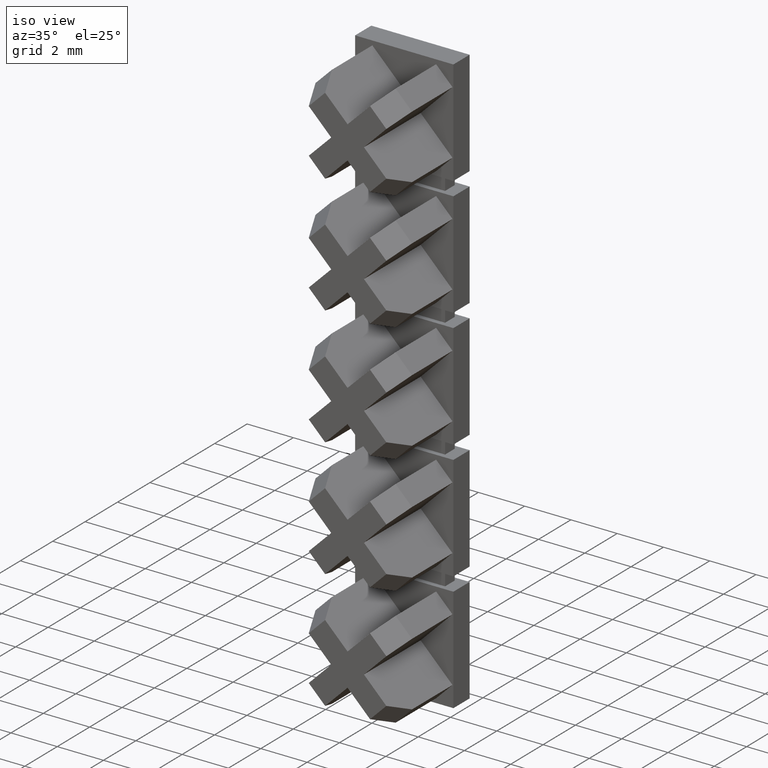
[diagram: clean part render]
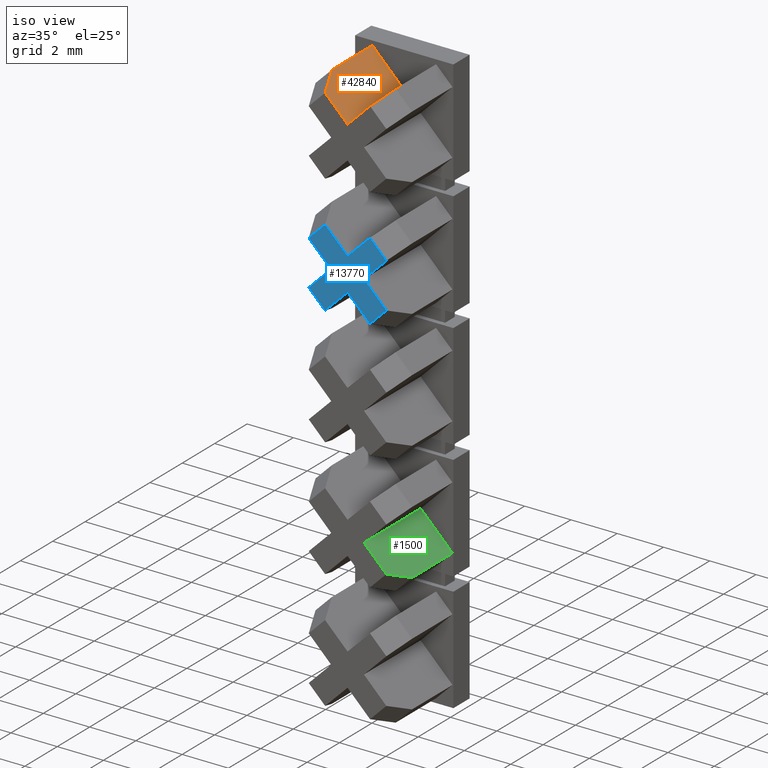
[diagram: same view with three faces highlighted in distinct colors, each labeled with its STEP entity id]
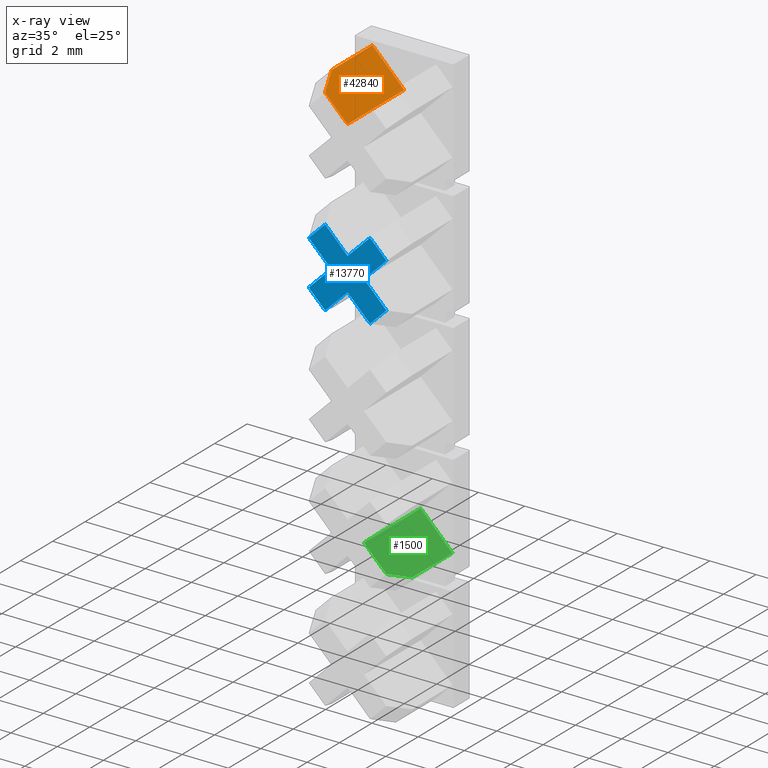
[diagram: x-ray of the same camera — body ghosted, the three highlighted faces saturated]
A machine part, iso view with three faces highlighted in distinct colors.
The next image is the same camera in x-ray (body ghosted, the three faces saturated) — at least one of them is partly hidden behind the body in this view.
Their STEP definitions:

[orange] entity #42840 — the highlighted planar face has unit normal (0.7071, 0, 0.7071).
#26390=CARTESIAN_POINT('',(14.4571673365369,-9.15000000000323,
72.3771067811865));
#26400=VERTEX_POINT('',#26390);
#26430=CARTESIAN_POINT('',(33.1642741177235,-9.15000000000323,53.67));
#26440=DIRECTION('',(-0.707106781186548,0.,0.707106781186548));
#26450=VECTOR('',#26440,1.);
#26460=LINE('',#26430,#26450);
#26470=CARTESIAN_POINT('',(13.0783091132231,-9.15000000000323,
73.7559650045003));
#26480=VERTEX_POINT('',#26470);
#26490=EDGE_CURVE('',#26400,#26480,#26460,.T.);
#38290=CARTESIAN_POINT('',(14.4571673365373,-12.6500000000046,
72.3771067811865));
#38300=VERTEX_POINT('',#38290);
#38330=CARTESIAN_POINT('',(14.4571673365372,-11.4157999825918,
72.3771067811865));
#38340=DIRECTION('',(-1.15463194561016E-13,1.,0.));
#38350=VECTOR('',#38340,1.);
#38360=LINE('',#38330,#38350);
#38370=EDGE_CURVE('',#38300,#26400,#38360,.T.);
#41750=CARTESIAN_POINT('',(13.4865574036874,-12.6500000000047,
73.3477167140364));
#41760=VERTEX_POINT('',#41750);
#41790=CARTESIAN_POINT('',(22.8642741177239,-12.6500000000036,63.97));
#41800=DIRECTION('',(-0.707106781186548,-8.16569034611803E-14,
0.707106781186548));
#41810=VECTOR('',#41800,1.);
#41820=LINE('',#41790,#41810);
#41830=EDGE_CURVE('',#38300,#41760,#41820,.T.);
#42380=CARTESIAN_POINT('',(13.0783091132234,-11.6500000000047,
73.7559650045003));
#42390=VERTEX_POINT('',#42380);
#42440=CARTESIAN_POINT('',(12.9826973564879,-11.4157999825918,
73.8515767612357));
#42450=DIRECTION('',(-0.353553390593373,0.866025403784398,
0.353553390593274));
#42460=VECTOR('',#42450,1.);
#42470=LINE('',#42440,#42460);
#42480=EDGE_CURVE('',#41760,#42390,#42470,.T.);
#42670=CARTESIAN_POINT('',(13.0606314436935,-9.15000000000473,
73.77364267403));
#42680=DIRECTION('',(0.707106781186548,8.16448078515563E-14,
0.707106781186548));
#42690=DIRECTION('',(-0.707106781186548,-8.16448078515563E-14,
0.707106781186548));
#42700=AXIS2_PLACEMENT_3D('',#42670,#42680,#42690);
#42710=PLANE('',#42700);
#42720=ORIENTED_EDGE('',*,*,#26490,.T.);
#42730=ORIENTED_EDGE('',*,*,#38370,.T.);
#42740=ORIENTED_EDGE('',*,*,#41830,.F.);
#42750=ORIENTED_EDGE('',*,*,#42480,.F.);
#42760=CARTESIAN_POINT('',(13.0783091132234,-11.4157999825918,
73.7559650045003));
#42770=DIRECTION('',(-1.15463194561016E-13,1.,2.78904447747367E-31));
#42780=VECTOR('',#42770,1.);
#42790=LINE('',#42760,#42780);
#42800=EDGE_CURVE('',#42390,#26480,#42790,.T.);
#42810=ORIENTED_EDGE('',*,*,#42800,.F.);
#42820=EDGE_LOOP('',(#42810,#42750,#42740,#42730,#42720));
#42830=FACE_OUTER_BOUND('',#42820,.T.);
#42840=ADVANCED_FACE('',(#42830),#42710,.T.);

[blue] entity #13770 — the highlighted planar face has unit normal (-0, 1, 0).
#12740=CARTESIAN_POINT('',(11.8898260000004,-12.6500000000049,33.844697)
);
#12750=DIRECTION('',(-1.15463194561016E-13,1.,0.));
#12760=DIRECTION('',(-1.,-1.15463194561016E-13,0.));
#12770=AXIS2_PLACEMENT_3D('',#12740,#12750,#12760);
#12780=PLANE('',#12770);
#12790=CARTESIAN_POINT('',(7.46427411772383,-12.6500000000054,58.82));
#12800=DIRECTION('',(0.707106781186547,8.16569034611803E-14,
0.707106781186548));
#12810=VECTOR('',#12800,1.);
#12820=LINE('',#12790,#12810);
#12830=CARTESIAN_POINT('',(15.1642741177238,-12.6500000000045,66.52));
#12840=VERTEX_POINT('',#12830);
#12850=CARTESIAN_POINT('',(16.1348840505737,-12.6500000000044,
67.4906099328499));
#12860=VERTEX_POINT('',#12850);
#12870=EDGE_CURVE('',#12840,#12860,#12820,.T.);
#12880=ORIENTED_EDGE('',*,*,#12870,.T.);
#12890=CARTESIAN_POINT('',(22.8642741177239,-12.6500000000036,58.82));
#12900=DIRECTION('',(-0.707106781186547,-8.16291478855646E-14,
0.707106781186548));
#12910=VECTOR('',#12900,1.);
#12920=LINE('',#12890,#12910);
#12930=CARTESIAN_POINT('',(16.1348840505738,-12.6500000000044,
65.5493900671501));
#12940=VERTEX_POINT('',#12930);
#12950=EDGE_CURVE('',#12940,#12840,#12920,.T.);
#12960=ORIENTED_EDGE('',*,*,#12950,.T.);
#12970=CARTESIAN_POINT('',(9.40549398342364,-12.6500000000052,58.82));
#12980=DIRECTION('',(0.707106781186547,8.16297660369823E-14,
0.707106781186548));
#12990=VECTOR('',#12980,1.);
#13000=LINE('',#12970,#12990);
#13010=CARTESIAN_POINT('',(15.4277772693872,-12.6500000000045,
64.8422832859635));
#13020=VERTEX_POINT('',#13010);
#13030=EDGE_CURVE('',#13020,#12940,#13000,.T.);
#13040=ORIENTED_EDGE('',*,*,#13030,.T.);
#13050=CARTESIAN_POINT('',(21.4500605553508,-12.6500000000038,58.82));
#13060=DIRECTION('',(0.707106781186547,8.16569034611803E-14,
-0.707106781186548));
#13070=VECTOR('',#13060,1.);
#13080=LINE('',#13050,#13070);
#13090=CARTESIAN_POINT('',(14.4571673365373,-12.6500000000046,
65.8128932188134));
#13100=VERTEX_POINT('',#13090);
#13110=EDGE_CURVE('',#13100,#13020,#13080,.T.);
#13120=ORIENTED_EDGE('',*,*,#13110,.T.);
#13130=CARTESIAN_POINT('',(7.46427411772383,-12.6500000000054,58.82));
#13140=DIRECTION('',(0.707106781186547,8.16569034611803E-14,
0.707106781186548));
#13150=VECTOR('',#13140,1.);
#13160=LINE('',#13130,#13150);
#13170=CARTESIAN_POINT('',(13.4865574036874,-12.6500000000047,
64.8422832859635));
#13180=VERTEX_POINT('',#13170);
#13190=EDGE_CURVE('',#13180,#13100,#13160,.T.);
#13200=ORIENTED_EDGE('',*,*,#13190,.T.);
#13210=CARTESIAN_POINT('',(19.508840689651,-12.650000000004,58.82));
#13220=DIRECTION('',(0.707106781186548,8.16297660369823E-14,
-0.707106781186548));
#13230=VECTOR('',#13220,1.);
#13240=LINE('',#13210,#13230);
#13250=CARTESIAN_POINT('',(12.7794506225008,-12.6500000000048,
65.5493900671501));
#13260=VERTEX_POINT('',#13250);
#13270=EDGE_CURVE('',#13260,#13180,#13240,.T.);
#13280=ORIENTED_EDGE('',*,*,#13270,.T.);
#13290=CARTESIAN_POINT('',(6.05006055535074,-12.6500000000055,58.82));
#13300=DIRECTION('',(-0.707106781186547,-8.16569034611803E-14,
-0.707106781186548));
#13310=VECTOR('',#13300,1.);
#13320=LINE('',#13290,#13310);
#13330=CARTESIAN_POINT('',(13.7500605553508,-12.6500000000047,66.52));
#13340=VERTEX_POINT('',#13330);
#13350=EDGE_CURVE('',#13340,#13260,#13320,.T.);
#13360=ORIENTED_EDGE('',*,*,#13350,.T.);
#13370=CARTESIAN_POINT('',(21.4500605553507,-12.6500000000038,58.82));
#13380=DIRECTION('',(0.707106781186546,8.16291478855646E-14,
-0.707106781186549));
#13390=VECTOR('',#13380,1.);
#13400=LINE('',#13370,#13390);
#13410=CARTESIAN_POINT('',(12.7794506225008,-12.6500000000048,
67.4906099328499));
#13420=VERTEX_POINT('',#13410);
#13430=EDGE_CURVE('',#13420,#13340,#13400,.T.);
#13440=ORIENTED_EDGE('',*,*,#13430,.T.);
#13450=CARTESIAN_POINT('',(14.1484164161272,-12.6500000000046,
68.8595757264762));
#13460=DIRECTION('',(-0.707106781186548,-8.16618154150887E-14,
-0.707106781186547));
#13470=VECTOR('',#13460,1.);
#13480=LINE('',#13450,#13470);
#13490=CARTESIAN_POINT('',(13.4865574036874,-12.6500000000047,
68.1977167140364));
#13500=VERTEX_POINT('',#13490);
#13510=EDGE_CURVE('',#13500,#13420,#13480,.T.);
#13520=ORIENTED_EDGE('',*,*,#13510,.T.);
#13530=CARTESIAN_POINT('',(22.8642741177239,-12.6500000000036,58.82));
#13540=DIRECTION('',(-0.707106781186548,-8.16569034611803E-14,
0.707106781186548));
#13550=VECTOR('',#13540,1.);
#13560=LINE('',#13530,#13550);
#13570=CARTESIAN_POINT('',(14.4571673365373,-12.6500000000046,
67.2271067811865));
#13580=VERTEX_POINT('',#13570);
#13590=EDGE_CURVE('',#13580,#13500,#13560,.T.);
#13600=ORIENTED_EDGE('',*,*,#13590,.T.);
#13610=CARTESIAN_POINT('',(6.05006055535073,-12.6500000000055,58.82));
#13620=DIRECTION('',(-0.707106781186548,-8.16569034611803E-14,
-0.707106781186548));
#13630=VECTOR('',#13620,1.);
#13640=LINE('',#13610,#13630);
#13650=CARTESIAN_POINT('',(15.4277772693872,-12.6500000000045,
68.1977167140364));
#13660=VERTEX_POINT('',#13650);
#13670=EDGE_CURVE('',#13660,#13580,#13640,.T.);
#13680=ORIENTED_EDGE('',*,*,#13670,.T.);
#13690=CARTESIAN_POINT('',(24.8054939834237,-12.6500000000034,58.82));
#13700=DIRECTION('',(-0.707106781186547,-8.16618154150887E-14,
0.707106781186548));
#13710=VECTOR('',#13700,1.);
#13720=LINE('',#13690,#13710);
#13730=EDGE_CURVE('',#12860,#13660,#13720,.T.);
#13740=ORIENTED_EDGE('',*,*,#13730,.T.);
#13750=EDGE_LOOP('',(#13740,#13680,#13600,#13520,#13440,#13360,#13280,
#13200,#13120,#13040,#12960,#12880));
#13760=FACE_OUTER_BOUND('',#13750,.T.);
#13770=ADVANCED_FACE('',(#13760),#12780,.F.);

[green] entity #1500 — the highlighted planar face has unit normal (0.7071, 0, 0.7071).
#1030=CARTESIAN_POINT('',(15.1642741177234,-9.15000000000449,56.22));
#1040=DIRECTION('',(0.707106781186548,8.16448078515563E-14,
0.707106781186547));
#1050=DIRECTION('',(-0.707106781186547,-8.16448078515563E-14,
0.707106781186548));
#1060=AXIS2_PLACEMENT_3D('',#1030,#1040,#1050);
#1070=PLANE('',#1060);
#1080=CARTESIAN_POINT('',(15.1642741177237,-11.4157999825918,56.22));
#1090=DIRECTION('',(1.15463194561016E-13,-1.,1.39452223873682E-31));
#1100=VECTOR('',#1090,1.);
#1110=LINE('',#1080,#1100);
#1120=CARTESIAN_POINT('',(15.1642741177234,-9.15000000000323,56.22));
#1130=VERTEX_POINT('',#1120);
#1140=CARTESIAN_POINT('',(15.1642741177238,-12.6500000000045,56.22));
#1150=VERTEX_POINT('',#1140);
#1160=EDGE_CURVE('',#1130,#1150,#1110,.T.);
#1170=ORIENTED_EDGE('',*,*,#1160,.T.);
#1180=CARTESIAN_POINT('',(17.7142741177235,-9.15000000000323,53.67));
#1190=DIRECTION('',(-0.707106781186547,-0.,0.707106781186548));
#1200=VECTOR('',#1190,1.);
#1210=LINE('',#1180,#1200);
#1220=CARTESIAN_POINT('',(16.5431323410372,-9.15000000000323,
54.8411417766862));
#1230=VERTEX_POINT('',#1220);
#1240=EDGE_CURVE('',#1230,#1130,#1210,.T.);
#1250=ORIENTED_EDGE('',*,*,#1240,.T.);
#1260=CARTESIAN_POINT('',(16.5431323410375,-11.4157999825918,
54.8411417766862));
#1270=DIRECTION('',(1.15463194561016E-13,-1.,-0.));
#1280=VECTOR('',#1270,1.);
#1290=LINE('',#1260,#1280);
#1300=CARTESIAN_POINT('',(16.5431323410375,-11.6500000000043,
54.8411417766862));
#1310=VERTEX_POINT('',#1300);
#1320=EDGE_CURVE('',#1230,#1310,#1290,.T.);
#1330=ORIENTED_EDGE('',*,*,#1320,.F.);
#1340=CARTESIAN_POINT('',(16.6387440977727,-11.4157999825918,
54.7455300199509));
#1350=DIRECTION('',(0.353553390593174,0.866025403784479,
-0.353553390593274));
#1360=VECTOR('',#1350,1.);
#1370=LINE('',#1340,#1360);
#1380=CARTESIAN_POINT('',(16.1348840505737,-12.6500000000044,
55.2493900671501));
#1390=VERTEX_POINT('',#1380);
#1400=EDGE_CURVE('',#1390,#1310,#1370,.T.);
#1410=ORIENTED_EDGE('',*,*,#1400,.T.);
#1420=CARTESIAN_POINT('',(17.7142741177239,-12.6500000000042,53.67));
#1430=DIRECTION('',(-0.707106781186547,-8.16291478855646E-14,
0.707106781186548));
#1440=VECTOR('',#1430,1.);
#1450=LINE('',#1420,#1440);
#1460=EDGE_CURVE('',#1390,#1150,#1450,.T.);
#1470=ORIENTED_EDGE('',*,*,#1460,.F.);
#1480=EDGE_LOOP('',(#1470,#1410,#1330,#1250,#1170));
#1490=FACE_OUTER_BOUND('',#1480,.T.);
#1500=ADVANCED_FACE('',(#1490),#1070,.T.);